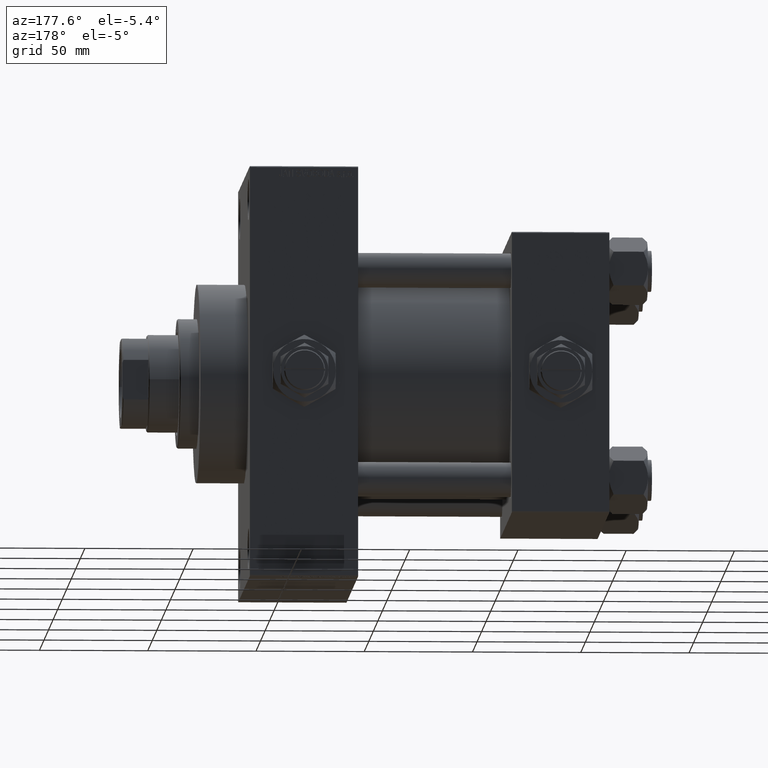
[diagram: clean part render]
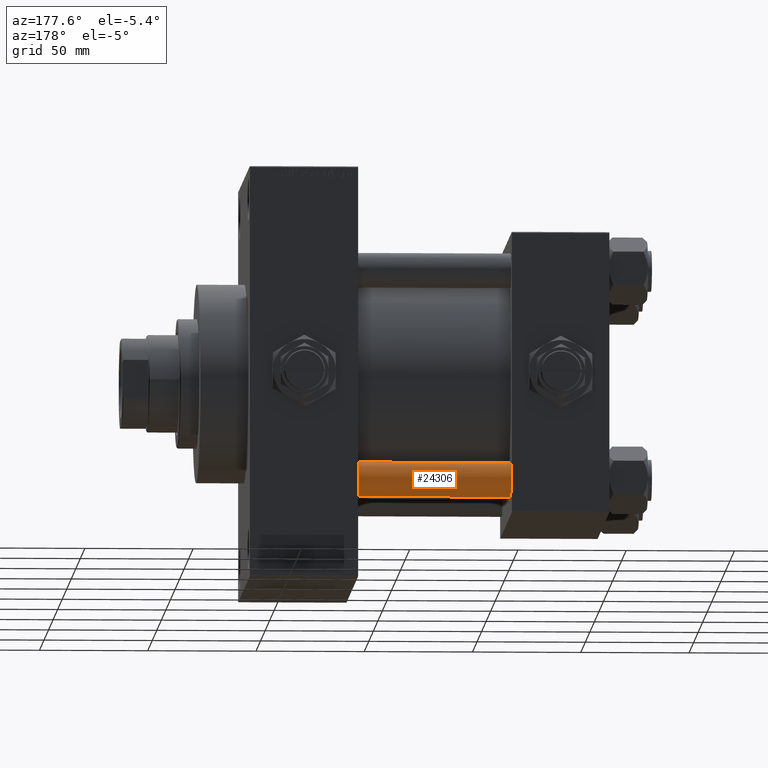
[diagram: same view with one face highlighted and labeled with its STEP entity id]
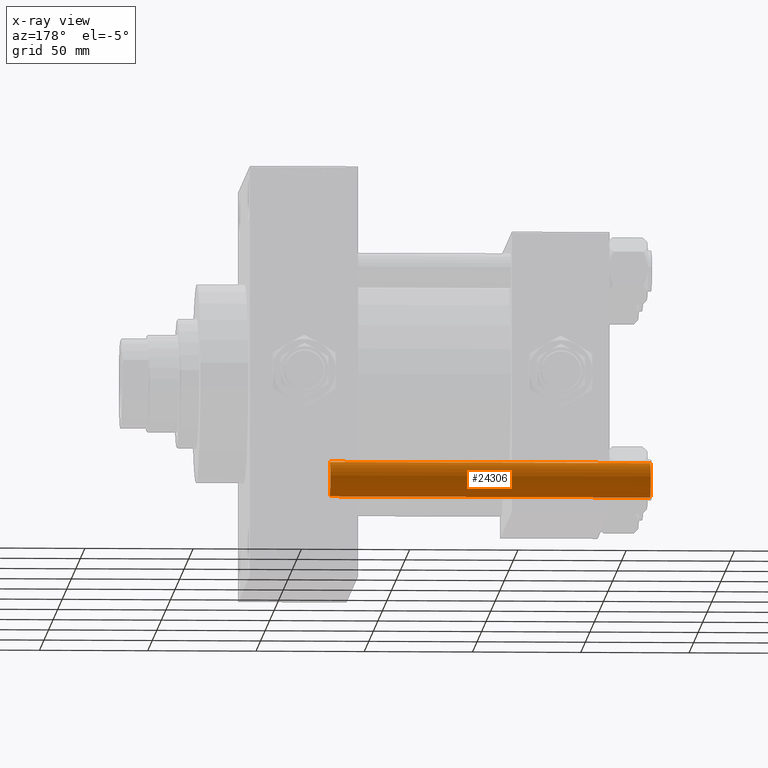
[diagram: x-ray of the same camera — body ghosted, the highlighted face saturated]
A machine part, auxiliary view. The second image highlights one B-rep face of the part: STEP entity #24306.
The next image is the same camera in x-ray: the body ghosted, the highlighted face saturated — about 0% of this face is hidden behind the body in this view.
In plain terms, the highlighted cylindrical surface (edge-blend (fillet) strip) has radius 8 mm, axis along (-1, -0, 0).
Its self-contained STEP definition (entity closure, byte-faithful):
#350 = CARTESIAN_POINT ( 'NONE',  ( 0.000000000000000000, 0.000000000000000000, 149.0000000000000000 ) ) ;
#1260 = AXIS2_PLACEMENT_3D ( 'NONE', #9355, #47876, #6579 ) ;
#2878 = ORIENTED_EDGE ( 'NONE', *, *, #41484, .T. ) ;
#3967 = DIRECTION ( 'NONE',  ( 0.000000000000000000, 0.000000000000000000, -1.000000000000000000 ) ) ;
#4894 = CARTESIAN_POINT ( 'NONE',  ( 8.000000000000000000, 9.797174393178825657E-16, 149.0000000000000000 ) ) ;
#5108 = VERTEX_POINT ( 'NONE', #35878 ) ;
#5697 = ORIENTED_EDGE ( 'NONE', *, *, #26821, .T. ) ;
#6300 = DIRECTION ( 'NONE',  ( -1.000000000000000000, 0.000000000000000000, 0.000000000000000000 ) ) ;
#6579 = DIRECTION ( 'NONE',  ( 1.000000000000000000, 0.000000000000000000, 0.000000000000000000 ) ) ;
#7080 = ORIENTED_EDGE ( 'NONE', *, *, #23693, .F. ) ;
#9355 = CARTESIAN_POINT ( 'NONE',  ( 0.000000000000000000, 0.000000000000000000, 0.5000000000000281997 ) ) ;
#10720 = EDGE_LOOP ( 'NONE', ( #17364, #2878, #5697, #7080 ) ) ;
#11019 = CARTESIAN_POINT ( 'NONE',  ( -8.000000000000000000, 0.000000000000000000, 148.5000000000000000 ) ) ;
#12596 = CARTESIAN_POINT ( 'NONE',  ( -8.000000000000000000, 0.000000000000000000, 0.5000000000000281997 ) ) ;
#13018 = DIRECTION ( 'NONE',  ( -0.000000000000000000, -0.000000000000000000, -1.000000000000000000 ) ) ;
#16576 = EDGE_CURVE ( 'NONE', #38528, #26778, #38800, .T. ) ;
#17163 = VECTOR ( 'NONE', #46931, 1000.000000000000000 ) ;
#17364 = ORIENTED_EDGE ( 'NONE', *, *, #16576, .T. ) ;
#19269 = LINE ( 'NONE', #4894, #17163 ) ;
#23303 = VERTEX_POINT ( 'NONE', #12596 ) ;
#23693 = EDGE_CURVE ( 'NONE', #38528, #23303, #40201, .T. ) ;
#24306 = ADVANCED_FACE ( 'NONE', ( #27040 ), #42398, .T. ) ;
#26089 = AXIS2_PLACEMENT_3D ( 'NONE', #350, #32988, #6300 ) ;
#26778 = VERTEX_POINT ( 'NONE', #41051 ) ;
#26821 = EDGE_CURVE ( 'NONE', #5108, #23303, #26993, .T. ) ;
#26993 = CIRCLE ( 'NONE', #1260, 8.000000000000000000 ) ;
#27040 = FACE_OUTER_BOUND ( 'NONE', #10720, .T. ) ;
#32988 = DIRECTION ( 'NONE',  ( -0.000000000000000000, -0.000000000000000000, -1.000000000000000000 ) ) ;
#35878 = CARTESIAN_POINT ( 'NONE',  ( 8.000000000000000000, 9.797174393178825657E-16, 0.5000000000000281997 ) ) ;
#38528 = VERTEX_POINT ( 'NONE', #11019 ) ;
#38770 = AXIS2_PLACEMENT_3D ( 'NONE', #43217, #3967, #46004 ) ;
#38800 = CIRCLE ( 'NONE', #38770, 8.000000000000000000 ) ;
#40201 = LINE ( 'NONE', #47032, #40518 ) ;
#40518 = VECTOR ( 'NONE', #13018, 1000.000000000000000 ) ;
#41051 = CARTESIAN_POINT ( 'NONE',  ( 8.000000000000000000, 9.797174393178825657E-16, 148.5000000000000000 ) ) ;
#41484 = EDGE_CURVE ( 'NONE', #26778, #5108, #19269, .T. ) ;
#42398 = CYLINDRICAL_SURFACE ( 'NONE', #26089, 8.000000000000000000 ) ;
#43217 = CARTESIAN_POINT ( 'NONE',  ( 0.000000000000000000, 0.000000000000000000, 148.5000000000000000 ) ) ;
#46004 = DIRECTION ( 'NONE',  ( 1.000000000000000000, 0.000000000000000000, 0.000000000000000000 ) ) ;
#46931 = DIRECTION ( 'NONE',  ( -0.000000000000000000, -0.000000000000000000, -1.000000000000000000 ) ) ;
#47032 = CARTESIAN_POINT ( 'NONE',  ( -8.000000000000000000, 0.000000000000000000, 149.0000000000000000 ) ) ;
#47876 = DIRECTION ( 'NONE',  ( -0.000000000000000000, -0.000000000000000000, 1.000000000000000000 ) ) ;